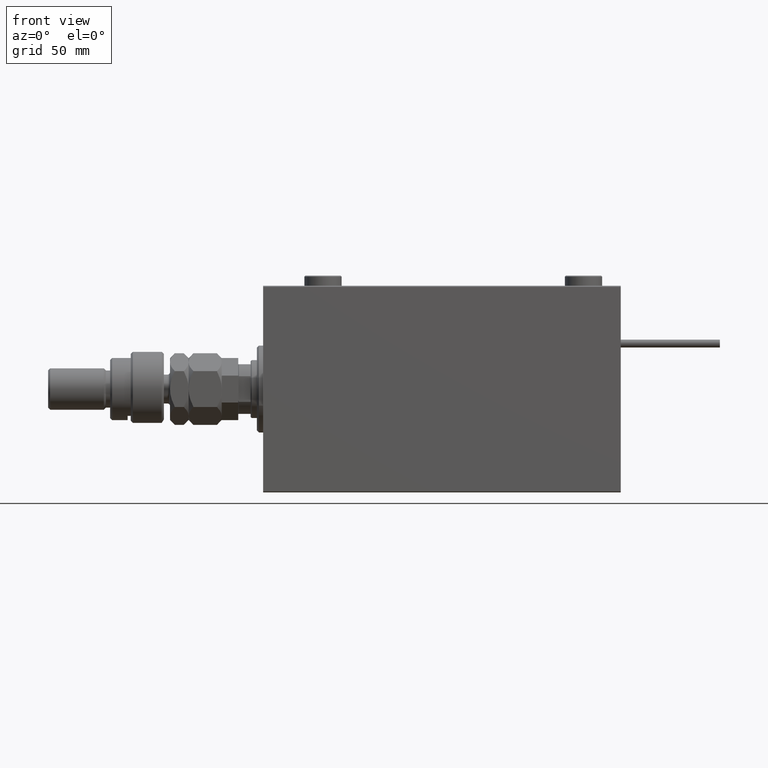
[diagram: clean part render]
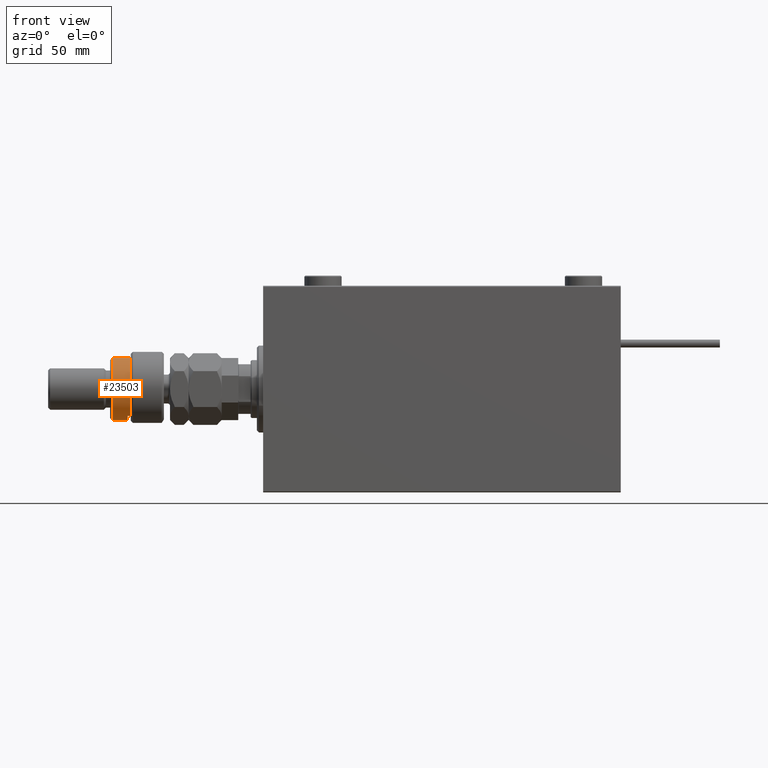
[diagram: same view with one face highlighted and labeled with its STEP entity id]
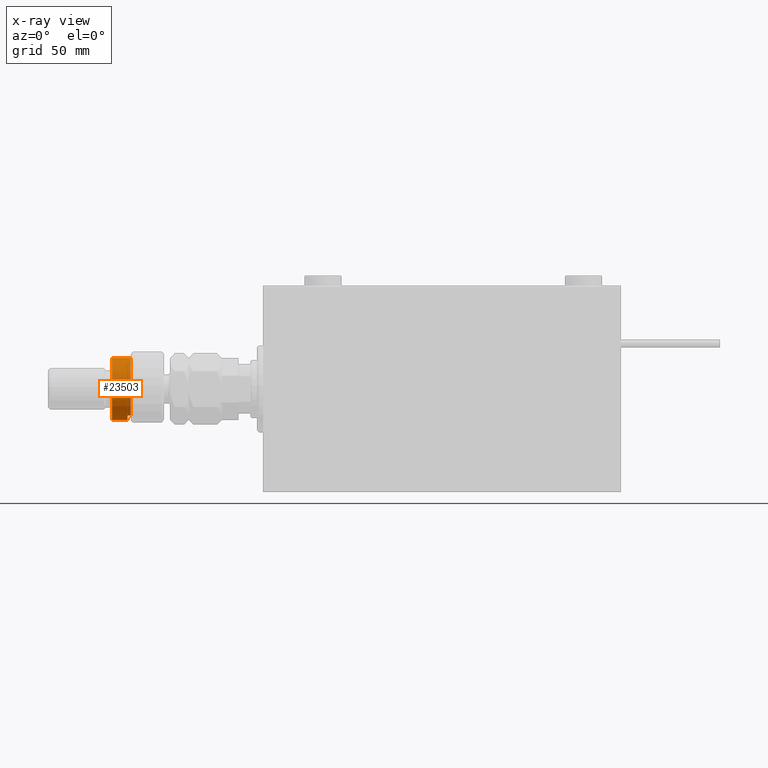
[diagram: x-ray of the same camera — body ghosted, the highlighted face saturated]
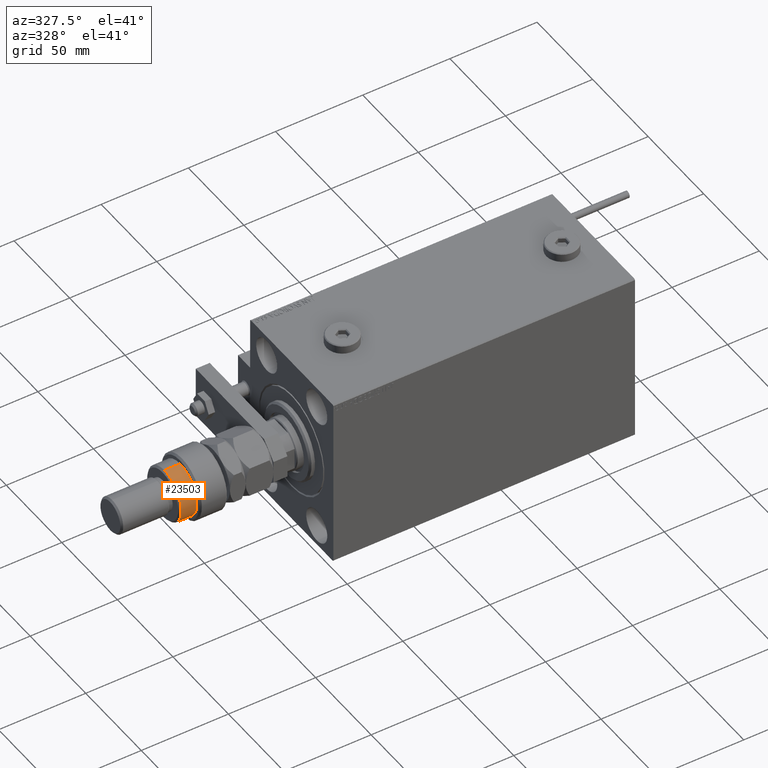
[diagram: same view with one face highlighted and labeled with its STEP entity id]
A machine part, front view. The second image highlights one B-rep face of the part: STEP entity #23503.
The next image is the same camera in x-ray: the body ghosted, the highlighted face saturated — about 0% of this face is hidden behind the body in this view.
A second angle (auxiliary view) of the same face is appended — the face is thin or edge-on in the first view.
In plain terms, the highlighted cylindrical surface (edge-blend (fillet) strip) has radius 15 mm, axis along (1, -0, -0).
Its self-contained STEP definition (entity closure, byte-faithful):
#1088 = VECTOR ( 'NONE', #30101, 1000.000000000000000 ) ;
#2095 = CIRCLE ( 'NONE', #6482, 15.00000000000000000 ) ;
#2114 = EDGE_LOOP ( 'NONE', ( #2609, #13920, #26826, #43691, #22991, #38435 ) ) ;
#2158 = DIRECTION ( 'NONE',  ( 1.000000000000000000, 0.000000000000000000, 0.000000000000000000 ) ) ;
#2436 = CARTESIAN_POINT ( 'NONE',  ( 0.000000000000000000, 0.000000000000000000, 16.00000000000000000 ) ) ;
#2600 = CARTESIAN_POINT ( 'NONE',  ( -15.00000000000000000, 0.000000000000000000, 17.50000000000000000 ) ) ;
#2609 = ORIENTED_EDGE ( 'NONE', *, *, #41720, .F. ) ;
#2840 = EDGE_CURVE ( 'NONE', #22378, #34266, #15231, .T. ) ;
#3203 = DIRECTION ( 'NONE',  ( -0.000000000000000000, -0.000000000000000000, -1.000000000000000000 ) ) ;
#4504 = CARTESIAN_POINT ( 'NONE',  ( -12.99038105676658006, -7.500000000000000000, 16.00000000000000000 ) ) ;
#5390 = VERTEX_POINT ( 'NONE', #35468 ) ;
#5589 = EDGE_CURVE ( 'NONE', #5390, #34266, #9897, .T. ) ;
#5861 = AXIS2_PLACEMENT_3D ( 'NONE', #40762, #36635, #35820 ) ;
#5897 = VERTEX_POINT ( 'NONE', #4504 ) ;
#6482 = AXIS2_PLACEMENT_3D ( 'NONE', #2436, #14835, #2158 ) ;
#8873 = EDGE_CURVE ( 'NONE', #5897, #22720, #2095, .T. ) ;
#8965 = DIRECTION ( 'NONE',  ( -1.000000000000000000, 0.000000000000000000, 0.000000000000000000 ) ) ;
#9309 = CARTESIAN_POINT ( 'NONE',  ( 15.00000000000000000, 1.836970198721029589E-15, 16.00000000000000000 ) ) ;
#9897 = CIRCLE ( 'NONE', #46803, 15.00000000000000000 ) ;
#9978 = CARTESIAN_POINT ( 'NONE',  ( -12.99038105676658006, -7.500000000000000000, 26.00000000000000355 ) ) ;
#13315 = AXIS2_PLACEMENT_3D ( 'NONE', #34559, #51375, #13613 ) ;
#13368 = DIRECTION ( 'NONE',  ( 0.000000000000000000, 0.000000000000000000, -1.000000000000000000 ) ) ;
#13613 = DIRECTION ( 'NONE',  ( 1.000000000000000000, 0.000000000000000000, 0.000000000000000000 ) ) ;
#13920 = ORIENTED_EDGE ( 'NONE', *, *, #48858, .T. ) ;
#14835 = DIRECTION ( 'NONE',  ( 0.000000000000000000, 0.000000000000000000, 1.000000000000000000 ) ) ;
#15231 = LINE ( 'NONE', #32046, #48584 ) ;
#18240 = CARTESIAN_POINT ( 'NONE',  ( 15.00000000000000000, 1.836970198721029589E-15, 24.99999999999997868 ) ) ;
#18244 = LINE ( 'NONE', #9978, #1088 ) ;
#19551 = CYLINDRICAL_SURFACE ( 'NONE', #5861, 15.00000000000000000 ) ;
#21346 = VERTEX_POINT ( 'NONE', #18240 ) ;
#22378 = VERTEX_POINT ( 'NONE', #29515 ) ;
#22720 = VERTEX_POINT ( 'NONE', #9309 ) ;
#22991 = ORIENTED_EDGE ( 'NONE', *, *, #50804, .T. ) ;
#23503 = ADVANCED_FACE ( 'NONE', ( #44635 ), #19551, .T. ) ;
#24939 = CARTESIAN_POINT ( 'NONE',  ( 15.00000000000000000, 1.836970198721029589E-15, 26.00000000000000355 ) ) ;
#26492 = CIRCLE ( 'NONE', #13315, 15.00000000000000000 ) ;
#26826 = ORIENTED_EDGE ( 'NONE', *, *, #2840, .T. ) ;
#29515 = CARTESIAN_POINT ( 'NONE',  ( -15.00000000000000000, 0.000000000000000000, 24.99999999999997868 ) ) ;
#30101 = DIRECTION ( 'NONE',  ( -0.000000000000000000, -0.000000000000000000, -1.000000000000000000 ) ) ;
#30734 = CARTESIAN_POINT ( 'NONE',  ( 0.000000000000000000, 0.000000000000000000, 17.50000000000000000 ) ) ;
#32046 = CARTESIAN_POINT ( 'NONE',  ( -15.00000000000000000, 0.000000000000000000, 26.00000000000000355 ) ) ;
#34266 = VERTEX_POINT ( 'NONE', #2600 ) ;
#34559 = CARTESIAN_POINT ( 'NONE',  ( 0.000000000000000000, 0.000000000000000000, 24.99999999999997868 ) ) ;
#35468 = CARTESIAN_POINT ( 'NONE',  ( -12.99038105676658006, -7.500000000000000000, 17.50000000000000000 ) ) ;
#35820 = DIRECTION ( 'NONE',  ( -1.000000000000000000, 0.000000000000000000, 0.000000000000000000 ) ) ;
#36635 = DIRECTION ( 'NONE',  ( -0.000000000000000000, -0.000000000000000000, -1.000000000000000000 ) ) ;
#38435 = ORIENTED_EDGE ( 'NONE', *, *, #8873, .T. ) ;
#40566 = DIRECTION ( 'NONE',  ( -0.000000000000000000, -0.000000000000000000, -1.000000000000000000 ) ) ;
#40762 = CARTESIAN_POINT ( 'NONE',  ( 0.000000000000000000, 0.000000000000000000, 26.00000000000000355 ) ) ;
#41720 = EDGE_CURVE ( 'NONE', #21346, #22720, #45064, .T. ) ;
#43691 = ORIENTED_EDGE ( 'NONE', *, *, #5589, .F. ) ;
#44635 = FACE_OUTER_BOUND ( 'NONE', #2114, .T. ) ;
#45064 = LINE ( 'NONE', #24939, #50357 ) ;
#46803 = AXIS2_PLACEMENT_3D ( 'NONE', #30734, #13368, #8965 ) ;
#48584 = VECTOR ( 'NONE', #40566, 1000.000000000000000 ) ;
#48858 = EDGE_CURVE ( 'NONE', #21346, #22378, #26492, .T. ) ;
#50357 = VECTOR ( 'NONE', #3203, 1000.000000000000000 ) ;
#50804 = EDGE_CURVE ( 'NONE', #5390, #5897, #18244, .T. ) ;
#51375 = DIRECTION ( 'NONE',  ( 0.000000000000000000, 0.000000000000000000, -1.000000000000000000 ) ) ;